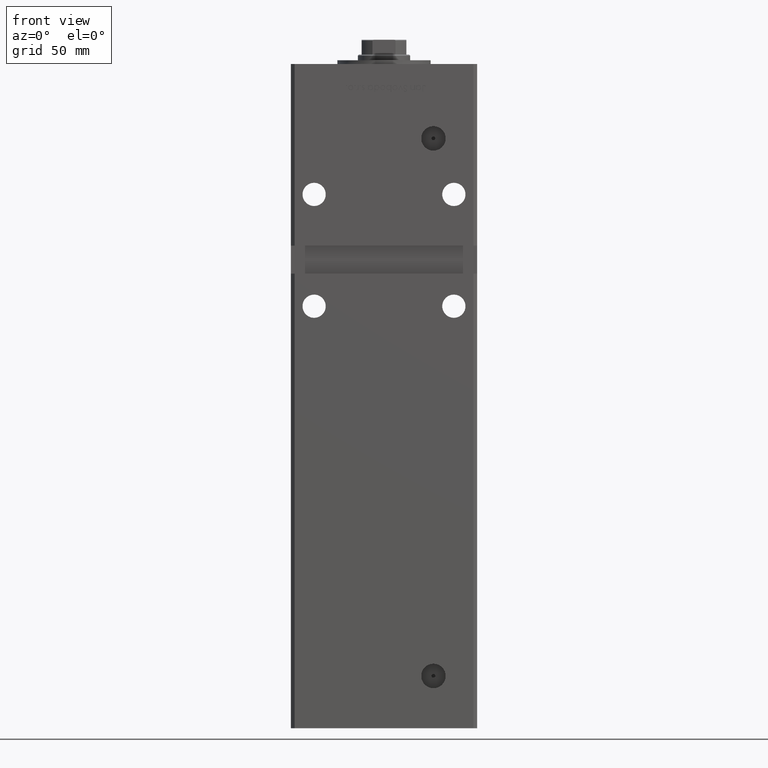
[diagram: clean part render]
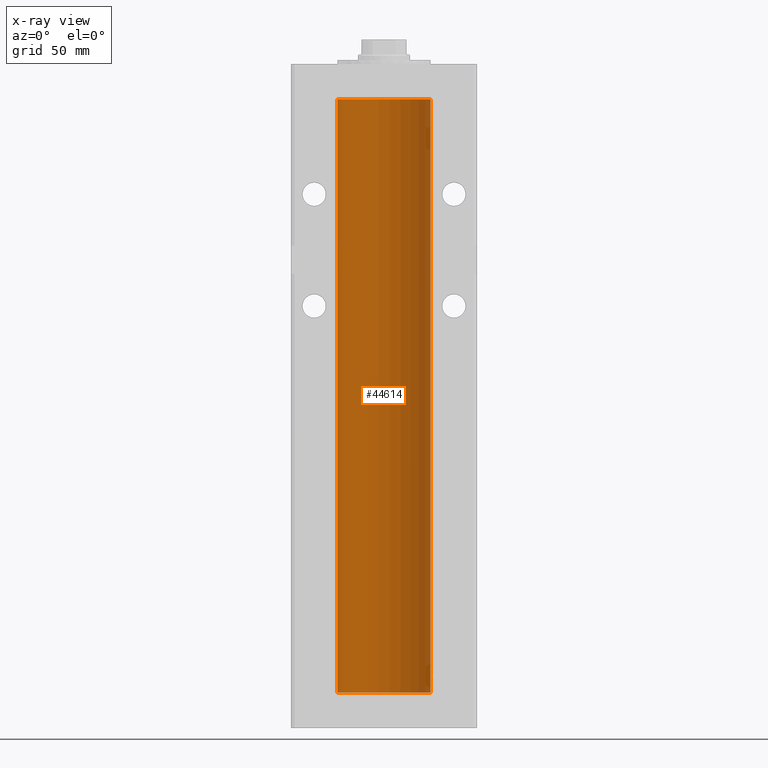
[diagram: x-ray — body ghosted, one internal face saturated and labeled with its STEP entity id]
A machine part, front view, then the same camera in x-ray: the body is ghosted and one INTERNAL B-rep face — a face not visible from any outside direction — is saturated and labeled: STEP entity #44614.
In plain terms, the highlighted cylindrical surface (partial cylindrical patch) has radius 25 mm, axis along (-0, -0, -1).
Its self-contained STEP definition (entity closure, byte-faithful):
#149 = CARTESIAN_POINT ( 'NONE',  ( -25.00000000000000000, 0.000000000000000000, 318.5000000000000000 ) ) ;
#351 = CARTESIAN_POINT ( 'NONE',  ( -25.00000000000000000, 0.000000000000000000, 318.5000000000000000 ) ) ;
#3965 = VERTEX_POINT ( 'NONE', #17286 ) ;
#8859 = FACE_OUTER_BOUND ( 'NONE', #48443, .T. ) ;
#11697 = VECTOR ( 'NONE', #21012, 1000.000000000000000 ) ;
#12056 = AXIS2_PLACEMENT_3D ( 'NONE', #12532, #37792, #29988 ) ;
#12532 = CARTESIAN_POINT ( 'NONE',  ( 0.000000000000000000, 0.000000000000000000, 318.5000000000000000 ) ) ;
#13075 = VERTEX_POINT ( 'NONE', #52801 ) ;
#14869 = VERTEX_POINT ( 'NONE', #149 ) ;
#16275 = AXIS2_PLACEMENT_3D ( 'NONE', #36828, #24740, #25525 ) ;
#17286 = CARTESIAN_POINT ( 'NONE',  ( 25.00000000000000000, 3.061616997868383043E-15, 0.000000000000000000 ) ) ;
#17679 = VECTOR ( 'NONE', #28594, 1000.000000000000000 ) ;
#18088 = CIRCLE ( 'NONE', #12056, 25.00000000000000000 ) ;
#21012 = DIRECTION ( 'NONE',  ( -0.000000000000000000, -0.000000000000000000, -1.000000000000000000 ) ) ;
#24048 = EDGE_CURVE ( 'NONE', #3965, #50895, #36884, .T. ) ;
#24740 = DIRECTION ( 'NONE',  ( -0.000000000000000000, 0.000000000000000000, 1.000000000000000000 ) ) ;
#24834 = LINE ( 'NONE', #351, #17679 ) ;
#25265 = DIRECTION ( 'NONE',  ( -1.000000000000000000, 0.000000000000000000, 0.000000000000000000 ) ) ;
#25525 = DIRECTION ( 'NONE',  ( 1.000000000000000000, 0.000000000000000000, 0.000000000000000000 ) ) ;
#25666 = ORIENTED_EDGE ( 'NONE', *, *, #47918, .F. ) ;
#26331 = EDGE_CURVE ( 'NONE', #13075, #14869, #18088, .T. ) ;
#28594 = DIRECTION ( 'NONE',  ( -0.000000000000000000, -0.000000000000000000, -1.000000000000000000 ) ) ;
#29988 = DIRECTION ( 'NONE',  ( 1.000000000000000000, 0.000000000000000000, 0.000000000000000000 ) ) ;
#32598 = CARTESIAN_POINT ( 'NONE',  ( -25.00000000000000000, 0.000000000000000000, 0.000000000000000000 ) ) ;
#33088 = LINE ( 'NONE', #49474, #11697 ) ;
#33977 = ORIENTED_EDGE ( 'NONE', *, *, #24048, .F. ) ;
#36828 = CARTESIAN_POINT ( 'NONE',  ( 0.000000000000000000, 0.000000000000000000, 0.000000000000000000 ) ) ;
#36884 = CIRCLE ( 'NONE', #16275, 25.00000000000000000 ) ;
#37792 = DIRECTION ( 'NONE',  ( -0.000000000000000000, 0.000000000000000000, 1.000000000000000000 ) ) ;
#37888 = CYLINDRICAL_SURFACE ( 'NONE', #38258, 25.00000000000000000 ) ;
#38258 = AXIS2_PLACEMENT_3D ( 'NONE', #50223, #38420, #25265 ) ;
#38420 = DIRECTION ( 'NONE',  ( -0.000000000000000000, -0.000000000000000000, -1.000000000000000000 ) ) ;
#44614 = ADVANCED_FACE ( 'NONE', ( #8859 ), #37888, .F. ) ;
#46712 = EDGE_CURVE ( 'NONE', #14869, #50895, #24834, .T. ) ;
#47918 = EDGE_CURVE ( 'NONE', #13075, #3965, #33088, .T. ) ;
#48232 = ORIENTED_EDGE ( 'NONE', *, *, #26331, .T. ) ;
#48443 = EDGE_LOOP ( 'NONE', ( #25666, #48232, #53183, #33977 ) ) ;
#49474 = CARTESIAN_POINT ( 'NONE',  ( 25.00000000000000000, 3.061616997868383043E-15, 318.5000000000000000 ) ) ;
#50223 = CARTESIAN_POINT ( 'NONE',  ( 0.000000000000000000, 0.000000000000000000, 318.5000000000000000 ) ) ;
#50895 = VERTEX_POINT ( 'NONE', #32598 ) ;
#52801 = CARTESIAN_POINT ( 'NONE',  ( 25.00000000000000000, 3.061616997868383043E-15, 318.5000000000000000 ) ) ;
#53183 = ORIENTED_EDGE ( 'NONE', *, *, #46712, .T. ) ;